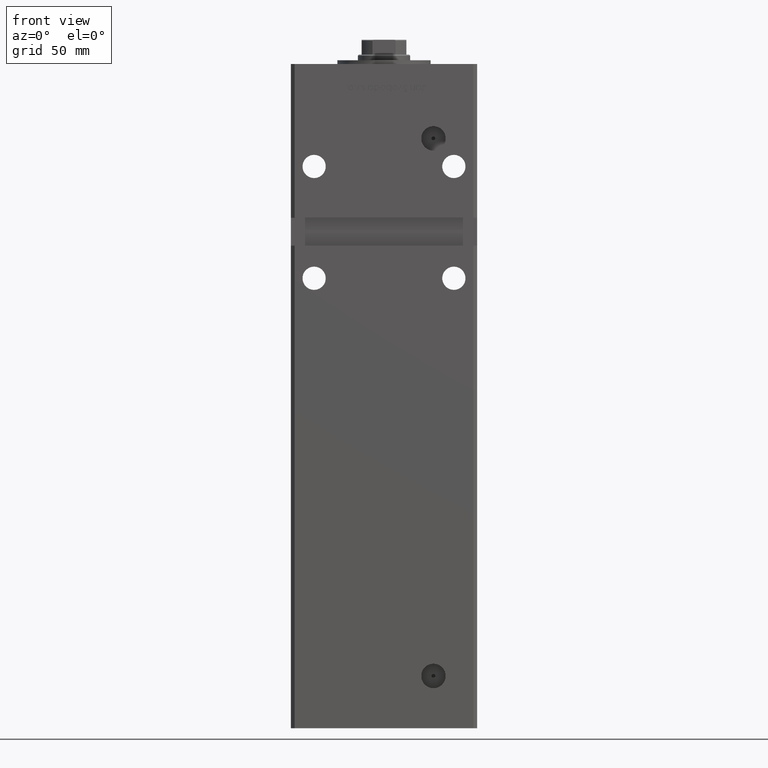
[diagram: clean part render]
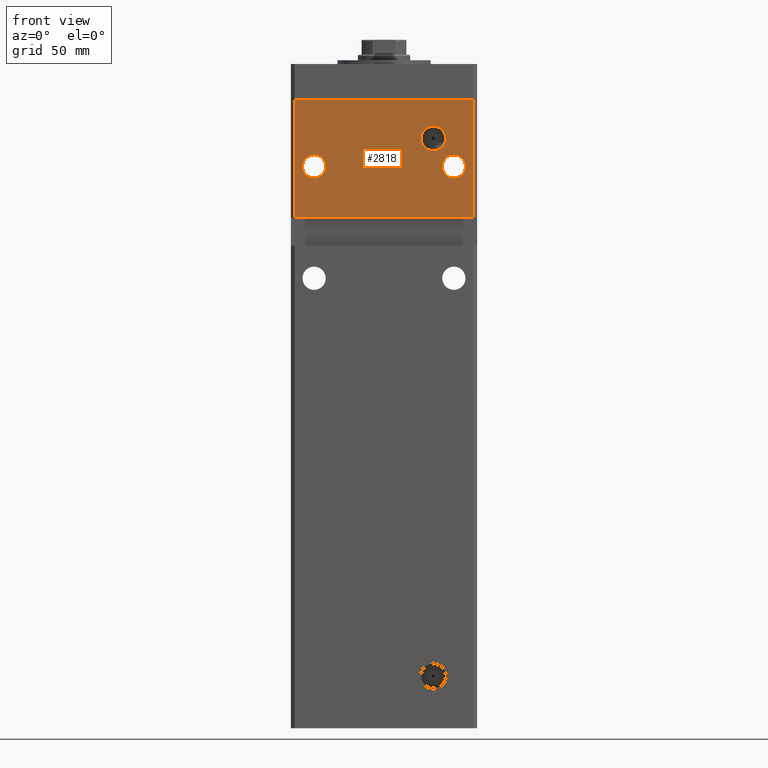
[diagram: same view with one face highlighted and labeled with its STEP entity id]
A machine part, front view. The second image highlights one B-rep face of the part: STEP entity #2818.
In plain terms, the highlighted planar face has unit normal (0, 1, 0).
Its self-contained STEP definition (entity closure, byte-faithful):
#123 = EDGE_LOOP ( 'NONE', ( #33171, #5468 ) ) ;
#2321 = FACE_OUTER_BOUND ( 'NONE', #42647, .T. ) ;
#2399 = AXIS2_PLACEMENT_3D ( 'NONE', #43599, #10552, #52170 ) ;
#2587 = AXIS2_PLACEMENT_3D ( 'NONE', #20544, #31140, #47523 ) ;
#2818 = ADVANCED_FACE ( 'NONE', ( #26770, #39132, #2321, #35103 ), #14696, .F. ) ;
#3252 = EDGE_CURVE ( 'NONE', #37096, #4166, #16750, .T. ) ;
#3675 = AXIS2_PLACEMENT_3D ( 'NONE', #42682, #51004, #22235 ) ;
#4122 = CIRCLE ( 'NONE', #2399, 6.579999999999975202 ) ;
#4166 = VERTEX_POINT ( 'NONE', #6860 ) ;
#5195 = CARTESIAN_POINT ( 'NONE',  ( -47.99999999999998579, -43.50000000000000000, 318.5000000000000000 ) ) ;
#5214 = ORIENTED_EDGE ( 'NONE', *, *, #3252, .T. ) ;
#5468 = ORIENTED_EDGE ( 'NONE', *, *, #10304, .T. ) ;
#6702 = EDGE_CURVE ( 'NONE', #37096, #20176, #26571, .T. ) ;
#6860 = CARTESIAN_POINT ( 'NONE',  ( -47.99999999999998579, -43.50000000000000000, 255.0000000000000000 ) ) ;
#8118 = ORIENTED_EDGE ( 'NONE', *, *, #30361, .T. ) ;
#10304 = EDGE_CURVE ( 'NONE', #21216, #17512, #33452, .T. ) ;
#10550 = CIRCLE ( 'NONE', #18244, 6.249999999999977796 ) ;
#10552 = DIRECTION ( 'NONE',  ( -0.000000000000000000, 1.000000000000000000, -0.000000000000000000 ) ) ;
#12240 = EDGE_CURVE ( 'NONE', #47176, #28067, #49836, .T. ) ;
#12453 = CARTESIAN_POINT ( 'NONE',  ( 47.99999999999998579, -43.50000000000000000, 318.5000000000000000 ) ) ;
#13456 = CARTESIAN_POINT ( 'NONE',  ( 37.50000000000000000, -43.50000000000000000, 288.7499999999999432 ) ) ;
#14130 = CARTESIAN_POINT ( 'NONE',  ( 47.99999999999998579, -43.50000000000000000, 255.0000000000000000 ) ) ;
#14696 = PLANE ( 'NONE',  #33385 ) ;
#15222 = EDGE_LOOP ( 'NONE', ( #34247, #30482 ) ) ;
#15367 = CARTESIAN_POINT ( 'NONE',  ( -47.99999999999998579, -43.50000000000000000, 318.5000000000000000 ) ) ;
#15735 = DIRECTION ( 'NONE',  ( 0.000000000000000000, -0.000000000000000000, 1.000000000000000000 ) ) ;
#15797 = CIRCLE ( 'NONE', #44096, 6.579999999999975202 ) ;
#16481 = LINE ( 'NONE', #36364, #41529 ) ;
#16750 = LINE ( 'NONE', #5195, #50531 ) ;
#17512 = VERTEX_POINT ( 'NONE', #13456 ) ;
#17750 = DIRECTION ( 'NONE',  ( 0.000000000000000000, 0.000000000000000000, 1.000000000000000000 ) ) ;
#18009 = VERTEX_POINT ( 'NONE', #14130 ) ;
#18244 = AXIS2_PLACEMENT_3D ( 'NONE', #26078, #34406, #17750 ) ;
#20176 = VERTEX_POINT ( 'NONE', #12453 ) ;
#20544 = CARTESIAN_POINT ( 'NONE',  ( 37.50000000000000000, -43.50000000000000000, 282.5000000000000000 ) ) ;
#20624 = AXIS2_PLACEMENT_3D ( 'NONE', #37243, #50670, #42343 ) ;
#20923 = VECTOR ( 'NONE', #30297, 1000.000000000000000 ) ;
#21216 = VERTEX_POINT ( 'NONE', #42157 ) ;
#21685 = LINE ( 'NONE', #45627, #20923 ) ;
#22235 = DIRECTION ( 'NONE',  ( 0.000000000000000000, 0.000000000000000000, 1.000000000000000000 ) ) ;
#22528 = CARTESIAN_POINT ( 'NONE',  ( -47.99999999999998579, -43.50000000000000000, 318.5000000000000000 ) ) ;
#22905 = EDGE_LOOP ( 'NONE', ( #8118, #32571 ) ) ;
#23055 = DIRECTION ( 'NONE',  ( 1.000000000000000000, 0.000000000000000000, 0.000000000000000000 ) ) ;
#26078 = CARTESIAN_POINT ( 'NONE',  ( 37.50000000000000000, -43.50000000000000000, 282.5000000000000000 ) ) ;
#26184 = EDGE_CURVE ( 'NONE', #20176, #18009, #21685, .T. ) ;
#26571 = LINE ( 'NONE', #22528, #45499 ) ;
#26770 = FACE_BOUND ( 'NONE', #123, .T. ) ;
#28067 = VERTEX_POINT ( 'NONE', #30923 ) ;
#29910 = DIRECTION ( 'NONE',  ( -0.000000000000000000, 1.000000000000000000, -0.000000000000000000 ) ) ;
#30085 = EDGE_CURVE ( 'NONE', #17512, #21216, #10550, .T. ) ;
#30297 = DIRECTION ( 'NONE',  ( -0.000000000000000000, -0.000000000000000000, -1.000000000000000000 ) ) ;
#30361 = EDGE_CURVE ( 'NONE', #28067, #47176, #47444, .T. ) ;
#30482 = ORIENTED_EDGE ( 'NONE', *, *, #37824, .T. ) ;
#30923 = CARTESIAN_POINT ( 'NONE',  ( -37.50000000000000000, -43.50000000000000000, 288.7499999999999432 ) ) ;
#31074 = CARTESIAN_POINT ( 'NONE',  ( -47.99999999999998579, -43.50000000000000000, 318.5000000000000000 ) ) ;
#31140 = DIRECTION ( 'NONE',  ( 0.000000000000000000, 1.000000000000000000, 0.000000000000000000 ) ) ;
#31814 = DIRECTION ( 'NONE',  ( -1.000000000000000000, -0.000000000000000000, -0.000000000000000000 ) ) ;
#32571 = ORIENTED_EDGE ( 'NONE', *, *, #12240, .T. ) ;
#33140 = DIRECTION ( 'NONE',  ( -0.000000000000000000, -0.000000000000000000, -1.000000000000000000 ) ) ;
#33171 = ORIENTED_EDGE ( 'NONE', *, *, #30085, .T. ) ;
#33385 = AXIS2_PLACEMENT_3D ( 'NONE', #31074, #36152, #15735 ) ;
#33452 = CIRCLE ( 'NONE', #2587, 6.249999999999977796 ) ;
#33942 = CARTESIAN_POINT ( 'NONE',  ( 26.49999999999995381, -43.50000000000000000, 297.5000000000000000 ) ) ;
#34247 = ORIENTED_EDGE ( 'NONE', *, *, #49437, .T. ) ;
#34256 = EDGE_CURVE ( 'NONE', #18009, #4166, #16481, .T. ) ;
#34406 = DIRECTION ( 'NONE',  ( 0.000000000000000000, 1.000000000000000000, 0.000000000000000000 ) ) ;
#34958 = CARTESIAN_POINT ( 'NONE',  ( 26.49999999999995381, -43.50000000000000000, 290.9200000000000159 ) ) ;
#35103 = FACE_BOUND ( 'NONE', #15222, .T. ) ;
#36152 = DIRECTION ( 'NONE',  ( 0.000000000000000000, 1.000000000000000000, 0.000000000000000000 ) ) ;
#36364 = CARTESIAN_POINT ( 'NONE',  ( -49.99999999999998579, -43.50000000000000000, 255.0000000000000000 ) ) ;
#37096 = VERTEX_POINT ( 'NONE', #15367 ) ;
#37243 = CARTESIAN_POINT ( 'NONE',  ( -37.50000000000000000, -43.50000000000000000, 282.5000000000000000 ) ) ;
#37824 = EDGE_CURVE ( 'NONE', #38978, #52729, #15797, .T. ) ;
#37906 = ORIENTED_EDGE ( 'NONE', *, *, #26184, .F. ) ;
#38978 = VERTEX_POINT ( 'NONE', #39072 ) ;
#39072 = CARTESIAN_POINT ( 'NONE',  ( 26.49999999999995381, -43.50000000000000000, 304.0799999999999841 ) ) ;
#39132 = FACE_BOUND ( 'NONE', #22905, .T. ) ;
#41529 = VECTOR ( 'NONE', #31814, 1000.000000000000000 ) ;
#42157 = CARTESIAN_POINT ( 'NONE',  ( 37.50000000000000000, -43.50000000000000000, 276.2500000000000000 ) ) ;
#42343 = DIRECTION ( 'NONE',  ( 0.000000000000000000, 0.000000000000000000, 1.000000000000000000 ) ) ;
#42554 = CARTESIAN_POINT ( 'NONE',  ( -37.50000000000000000, -43.50000000000000000, 276.2500000000000000 ) ) ;
#42647 = EDGE_LOOP ( 'NONE', ( #5214, #42746, #37906, #47371 ) ) ;
#42682 = CARTESIAN_POINT ( 'NONE',  ( -37.50000000000000000, -43.50000000000000000, 282.5000000000000000 ) ) ;
#42746 = ORIENTED_EDGE ( 'NONE', *, *, #34256, .F. ) ;
#43599 = CARTESIAN_POINT ( 'NONE',  ( 26.49999999999995381, -43.50000000000000000, 297.5000000000000000 ) ) ;
#44096 = AXIS2_PLACEMENT_3D ( 'NONE', #33942, #29910, #46294 ) ;
#45499 = VECTOR ( 'NONE', #23055, 1000.000000000000000 ) ;
#45627 = CARTESIAN_POINT ( 'NONE',  ( 47.99999999999998579, -43.50000000000000000, 318.5000000000000000 ) ) ;
#46294 = DIRECTION ( 'NONE',  ( 0.000000000000000000, 0.000000000000000000, -1.000000000000000000 ) ) ;
#47176 = VERTEX_POINT ( 'NONE', #42554 ) ;
#47371 = ORIENTED_EDGE ( 'NONE', *, *, #6702, .F. ) ;
#47444 = CIRCLE ( 'NONE', #3675, 6.249999999999977796 ) ;
#47523 = DIRECTION ( 'NONE',  ( 0.000000000000000000, 0.000000000000000000, 1.000000000000000000 ) ) ;
#49437 = EDGE_CURVE ( 'NONE', #52729, #38978, #4122, .T. ) ;
#49836 = CIRCLE ( 'NONE', #20624, 6.249999999999977796 ) ;
#50531 = VECTOR ( 'NONE', #33140, 1000.000000000000000 ) ;
#50670 = DIRECTION ( 'NONE',  ( 0.000000000000000000, 1.000000000000000000, 0.000000000000000000 ) ) ;
#51004 = DIRECTION ( 'NONE',  ( 0.000000000000000000, 1.000000000000000000, 0.000000000000000000 ) ) ;
#52170 = DIRECTION ( 'NONE',  ( 0.000000000000000000, 0.000000000000000000, -1.000000000000000000 ) ) ;
#52729 = VERTEX_POINT ( 'NONE', #34958 ) ;